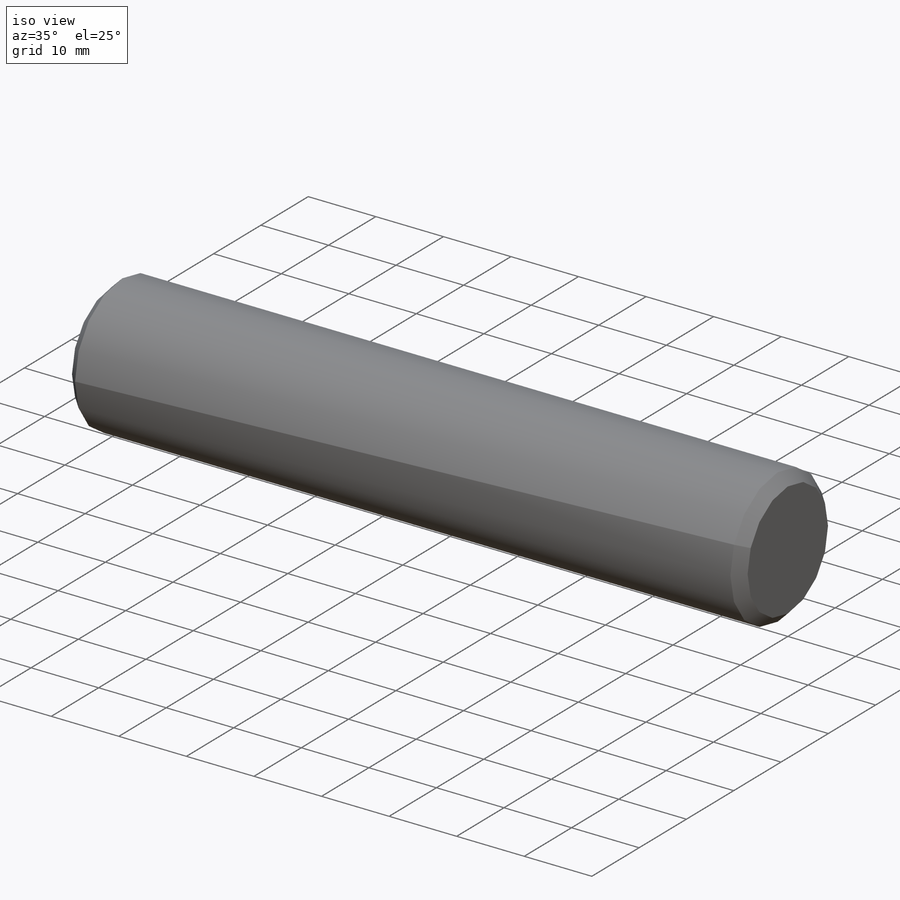
[diagram: iso view]
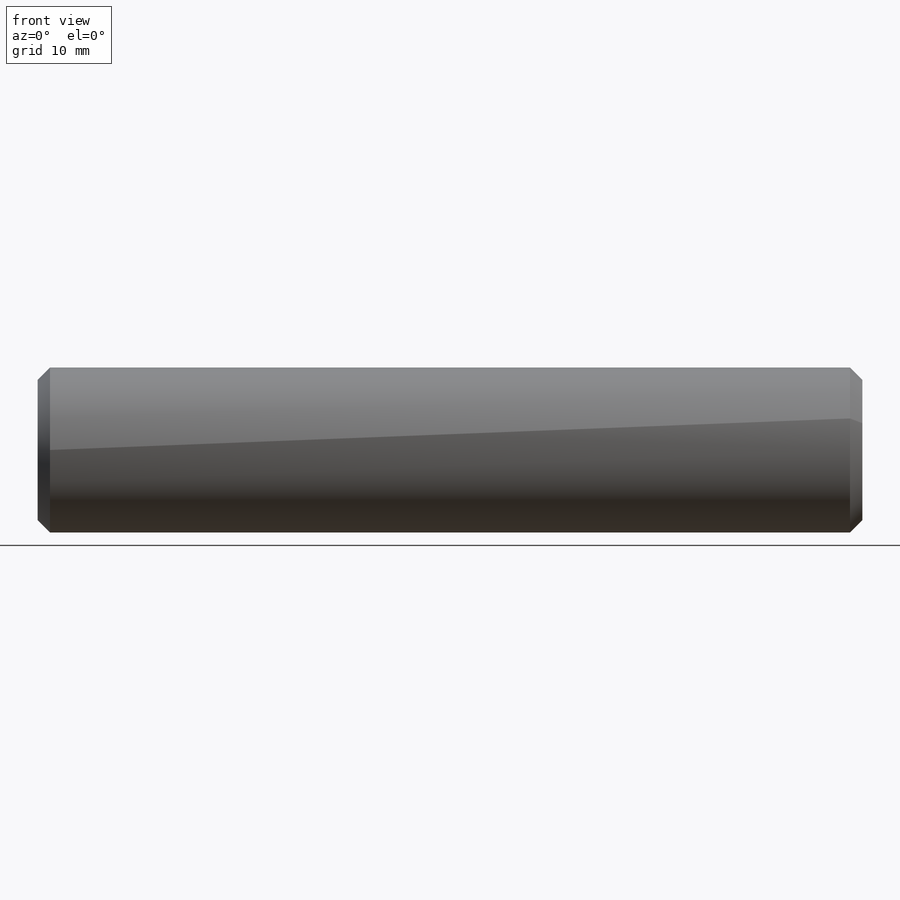
[diagram: front view]
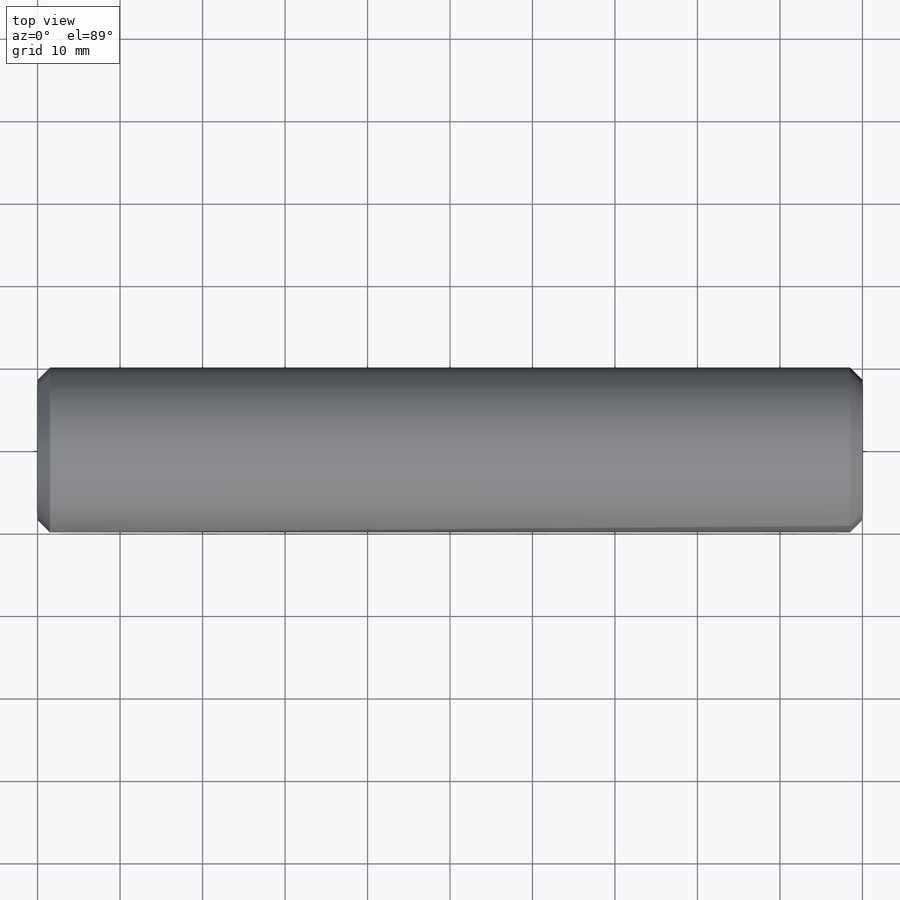
[diagram: top view]
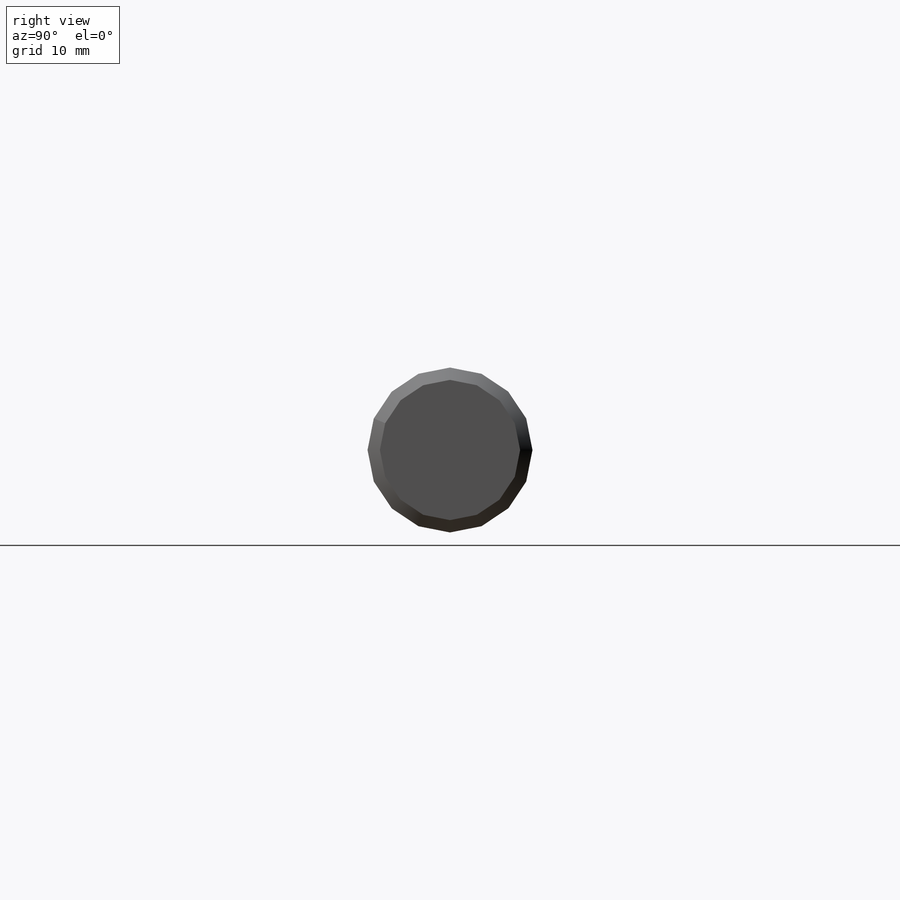
[diagram: right view]
SOLIDWORKS PART (.sldprt)
format: sldprt  version: not decoded by parser v0  size: 1,271,296 bytes
history: native  units: mm
features: plane x3, sketch x2, material x1, revolve x1, thread x1, chamfer x1, cut_revolve x1, pattern_linear x1 (+9 scaffold rows collapsed)
feature tree (20):
  scaffold x9  (default folders/planes/origin — collapsed)
  material  "Материал <не указан>"
  plane  "Plane1"
  plane  "Plane2"
  plane  "Plane3"
  sketch  "BodySke"  dims[c1.Thread_neck_fillet_rad=1.14mm c1.Head_fillet_radius=1.0mm c1.Tread_neck_fillet_rad=1.0mm c1.Shoulder_fillet_radius=1.0mm c1.Head_dia=36.0mm c1.Head_ht=14.0mm c1.Head_side_ht=13.3858mm c1.D4=~4.490128mm c1.Head_ch_ang=45.0deg c1.Shoulder_neck_dia=17.0mm c1.Diameter=20.0mm c1.Thread_dia=20.0mm c1.Minor_dia=17.0mm c1.D9=12.7mm c1.Thread_ch_ang=45.0deg c1.Thread_neck_dia=17.0mm c1.D11=~4.490128mm c2.D11=30.0deg c2.Thread_length=46.0mm c2.D13=~4.490128mm c3.D13=45.0deg c3.Length=100.0mm c3.Thread_neck_width=2.5mm c3.Shoulder_neck_width=2.5mm c3.Advance=2.1082mm c3.Thread_nom=22.4mm c3.D1=~8.01243mm c4.D1=~0.715083deg c4.D2=~8.01243mm c5.D2=~0.715083deg c5.D1=~8.01243mm c6.D1=~0.715083deg c7.D1=~15.850834mm c8.D1=~0.715083deg c8.Advance=2.0mm c8.Thread_lim=41.5mm c8.Top_chamfer_ht=0.8mm c8.Head_dia=20.0001mm c8.Length=100.0mm c8.Studend_dia=20.0mm c8.D3=~2.732069mm c9.D3=~30.001816deg c9.D13=30.0deg c9.D4=~2.121356mm c9.Studendang=45.0deg c9.Shoulder_neck_dia=17.0mm c9.Shoulder_neck_width=2.5mm c9.Studend_length=20.0mm c9.Diameter=20.0001mm c9.Thread_dia=20.0mm c10.Diameter=5.0mm c10.Length=100.0mm c11.Length=35.0mm c11.D2=~2.12132mm c12.D2=45.0deg c12.Minor_dia=15.0mm c12.Advance=0.8mm c13.Minor_dia=17.0mm c14.Minor_dia=4.11mm c14.Thread_max=45.0mm]
  revolve  "BaseBody"  [1 undecoded]
  thread  "ThreadCosmetic"  Diameter=4.11mm Thread_minor=4.11mm  [1 undecoded]
  chamfer  "Chamfer1"  Distance=0.445mm Angle=45deg Chamfer=0.445mm
  sketch  "ThdSchSke"  dims[c1.Thread_minor=~1.03886mm c1.Diameter=~1.413535mm c1.Start=~0.988134mm c1.D4=~4.446753mm c1.Vee=60.0deg c2.Thread_minor=~1.03886mm c2.Start=~2.540025mm c2.D1=~0.108159mm c2.D2=~0.108159mm c3.D1=~0.216319mm c3.SideAngle=55.0deg c3.D2=~0.216319mm c3.VeeAngle=70.0deg c3.Thread_minor=4.11mm c3.Overcut=6.25mm c3.Diameter=5.0mm c3.D6=~8.326268mm c4.D1=~8.326268mm c5.D1=90.0deg c5.Start=63.5mm c6.Start=140.4874mm c7.Start=15.8496mm c8.Start=74.8mm c9.Start=78.5mm c9.D1=2.5mm]
  cut_revolve  "ThreadSchematic"  Angle=360deg
  pattern_linear  "ThdSchPat"  Count1=56 Count2=1 Spacing1=0.803571mm Spacing2=50mm Num_threads=56 Advance=0.803571mm
decode coverage: 6 of 7 modeling features carry decoded parameters
note: ~ marks probable driven/reference dimensions
note: 2 parameter values undecoded
note: suppression state not decoded; provenance and decode notes live in map.json
